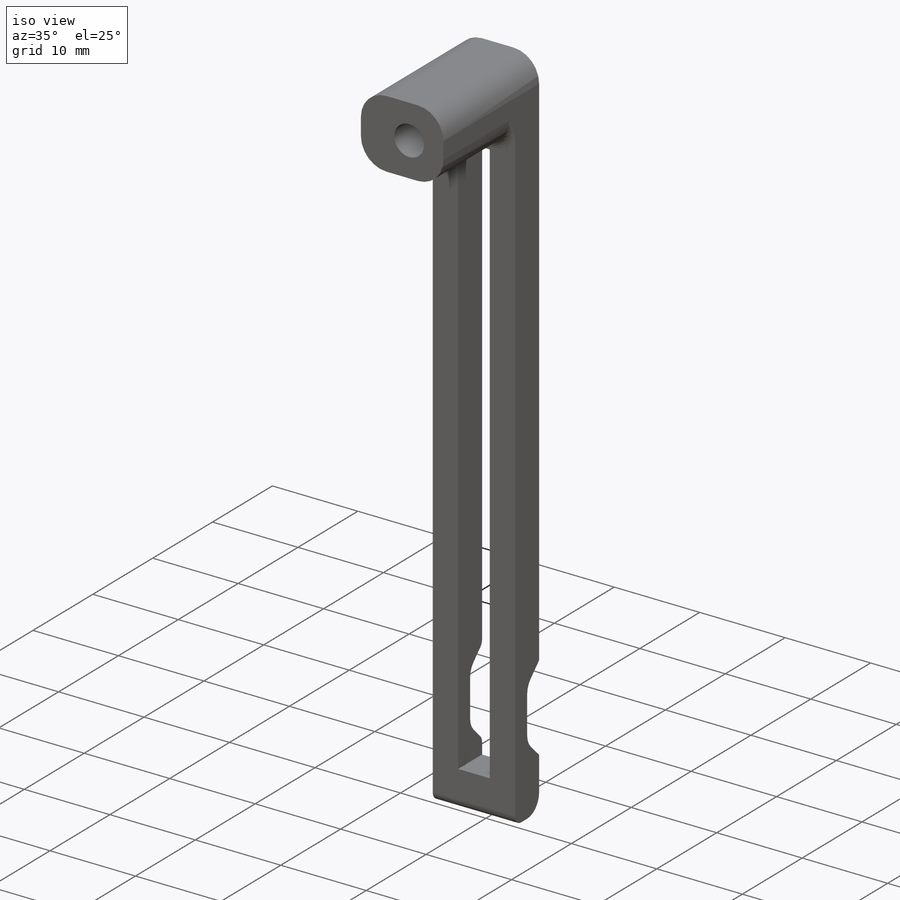
[diagram: iso view]
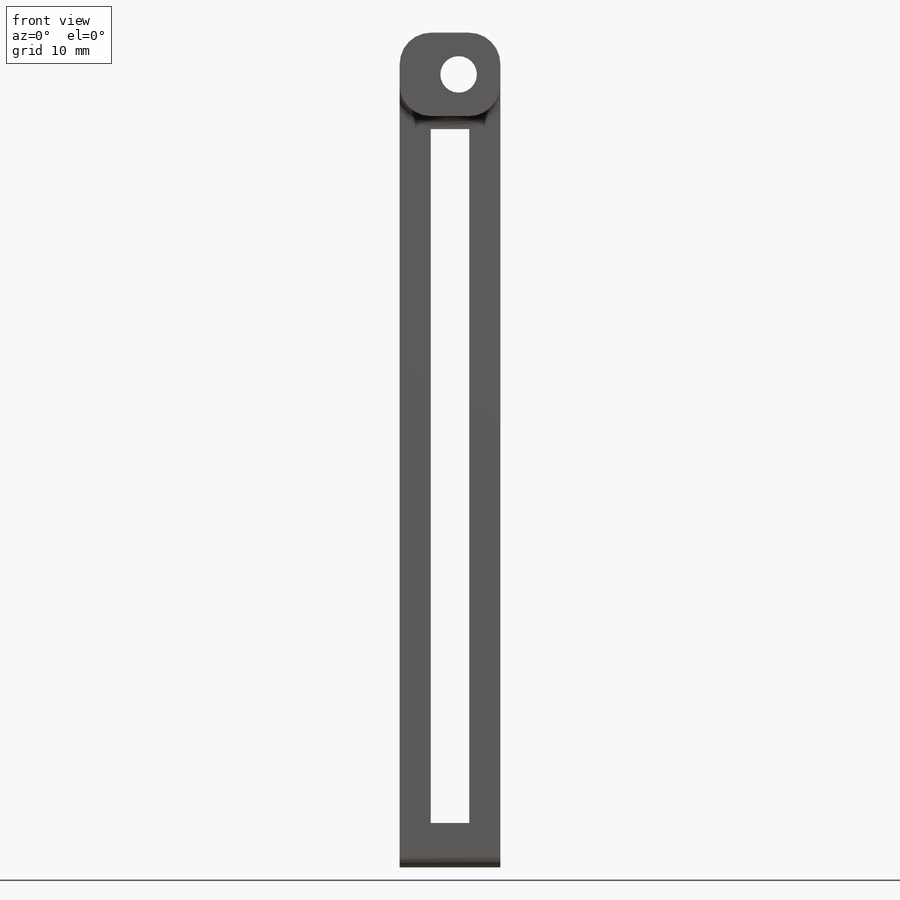
[diagram: front view]
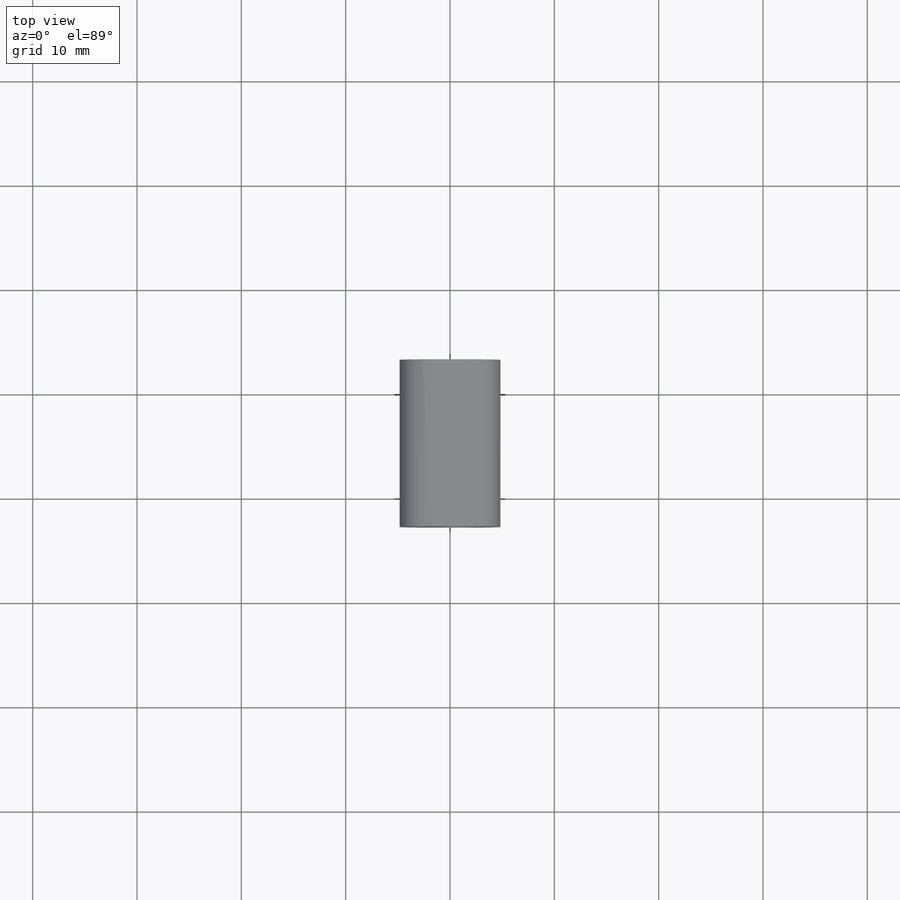
[diagram: top view]
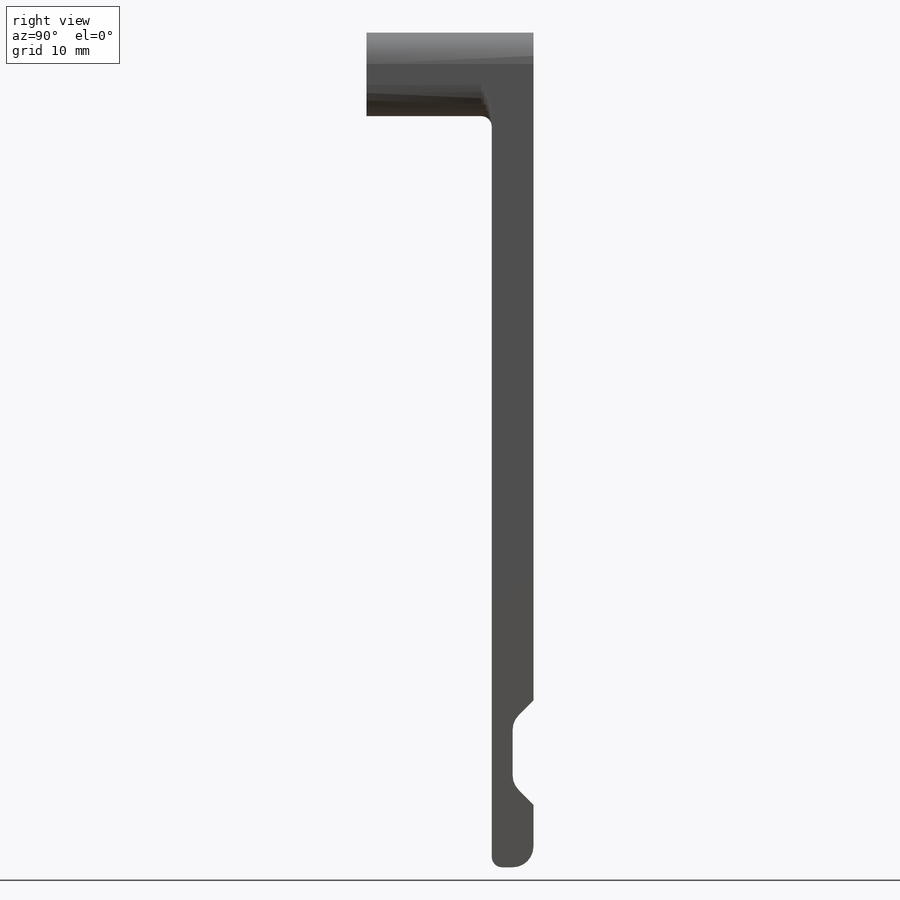
[diagram: right view]
SOLIDWORKS PART (.sldprt)
format: sldprt  version: not decoded by parser v0  size: 307,712 bytes
history: native  units: mm
features: fillet x6, sketch x5, plane x3, cut_extrude x3, extrude x2, material x1 (+10 scaffold rows collapsed)
feature tree (30):
  scaffold x10  (default folders/planes/origin — collapsed)
  material  "Material <nicht angegeben>"
  plane  "Ebene vorne"
  plane  "Ebene oben"
  plane  "Ebene rechts"
  sketch  "body"  dims[c1.D1=~174.180193mm c1.D2=~28.740755mm c2.D1=80.0mm c2.D2=9.65mm]
  extrude  "body_"  Depth=4mm
  sketch  "Skizze2"  dims[c1.D1=~74.218949mm c1.D2=~5.654145mm c2.D1=66.5mm c2.D2=3.7mm c2.D3=37.5mm]
  cut_extrude  "rut"  [1 undecoded]
  sketch  "spare"  dims[c1.D1=~3.697562mm c2.D1=135.0deg c2.D2=~14.722589mm c3.D2=315.0deg c3.D1=~12.79731mm c4.D1=45.0deg c4.D2=6.0mm c4.D3=~5.342082mm c5.D3=45.0deg c5.D4=2.0mm c5.D5=10.0mm c5.D6=11.0mm]
  cut_extrude  "notch"  [1 undecoded]
  fillet  "Verrundung3"  Radius=2mm
  fillet  "Verrundung4"  Radius=1mm
  fillet  "Verrundung5"  Radius=1mm
  sketch  "Skizze4"  dims[c1.D1=~3.179137mm c1.D2=~1.56018mm c2.D1=~4.981272mm c2.D2=9.65mm c3.D1=8.0mm]
  extrude  "Aufsatz-Linear austragen1"  Depth=12mm
  fillet  "Verrundung6"  Radius=2mm
  sketch  "Skizze5"  dims[c1.D1=~4.205471mm c1.D5=3.5mm c2.D1=4.0mm c2.D2=~6.265834mm c3.D1=8.0mm c3.D2=4.0mm c3.D3=4.0mm c4.D2=4.0mm c4.D3=5.65mm c4.D4=~6.927097mm c5.D4=90.0deg c6.D4=~6.927097mm c7.D4=90.0deg c8.D4=4.0mm]
  cut_extrude  "loch"  [1 undecoded]
  fillet  "Verrundung7"  Radius=3mm
  fillet  "Verrundung8"  Radius=1mm
decode coverage: 13 of 16 modeling features carry decoded parameters
note: ~ marks probable driven/reference dimensions
note: 3 parameter values undecoded
summary: no parameter record found for 3 features
note: suppression state not decoded; provenance and decode notes live in map.json
